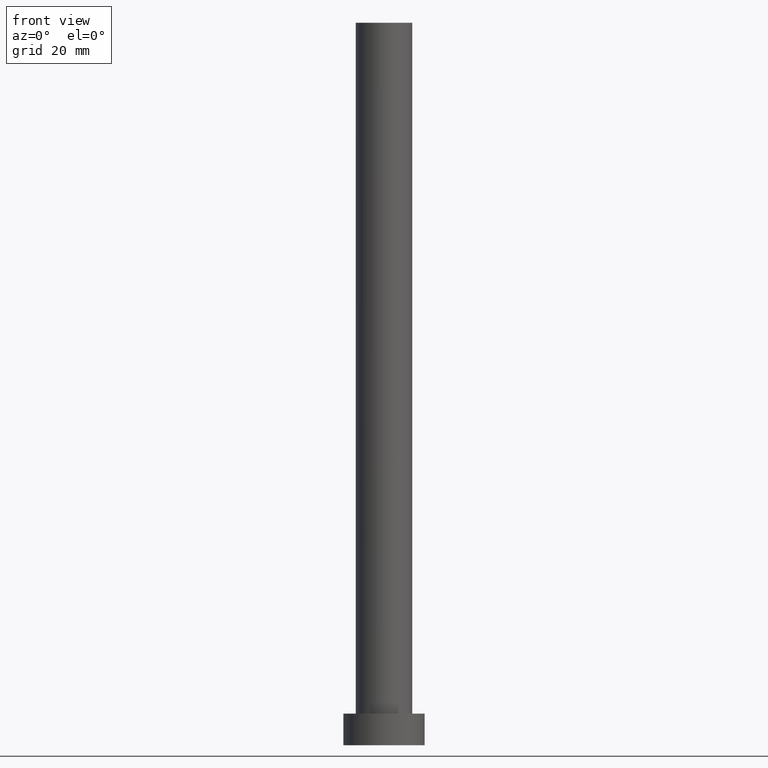
[diagram: clean part render]
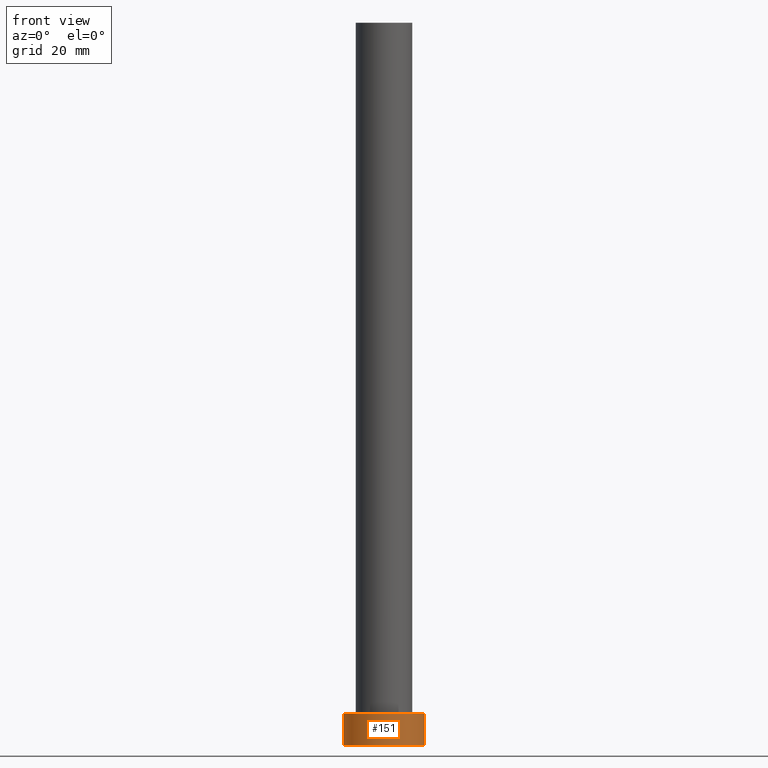
[diagram: same view with one face highlighted and labeled with its STEP entity id]
A machine part, front view. The second image highlights one B-rep face of the part: STEP entity #151.
In plain terms, the highlighted cylindrical surface (partial cylindrical patch) has radius 9 mm, axis along (-0, -0, -1).
Its self-contained STEP definition (entity closure, byte-faithful):
#4 = DIRECTION ( 'NONE',  ( -0.000000000000000000, -0.000000000000000000, -1.000000000000000000 ) ) ;
#8 = EDGE_CURVE ( 'NONE', #63, #89, #39, .T. ) ;
#11 = CARTESIAN_POINT ( 'NONE',  ( 0.000000000000000000, 0.000000000000000000, 7.000000000000000000 ) ) ;
#13 = CYLINDRICAL_SURFACE ( 'NONE', #43, 9.000000000000000000 ) ;
#14 = ORIENTED_EDGE ( 'NONE', *, *, #164, .T. ) ;
#25 = DIRECTION ( 'NONE',  ( -0.000000000000000000, -0.000000000000000000, -1.000000000000000000 ) ) ;
#34 = FACE_OUTER_BOUND ( 'NONE', #69, .T. ) ;
#36 = AXIS2_PLACEMENT_3D ( 'NONE', #11, #46, #104 ) ;
#39 = LINE ( 'NONE', #169, #45 ) ;
#43 = AXIS2_PLACEMENT_3D ( 'NONE', #77, #25, #241 ) ;
#45 = VECTOR ( 'NONE', #4, 1000.000000000000000 ) ;
#46 = DIRECTION ( 'NONE',  ( 0.000000000000000000, 0.000000000000000000, 1.000000000000000000 ) ) ;
#58 = LINE ( 'NONE', #116, #172 ) ;
#60 = ORIENTED_EDGE ( 'NONE', *, *, #144, .T. ) ;
#63 = VERTEX_POINT ( 'NONE', #228 ) ;
#69 = EDGE_LOOP ( 'NONE', ( #249, #194, #14, #60 ) ) ;
#72 = CIRCLE ( 'NONE', #140, 9.000000000000000000 ) ;
#75 = CARTESIAN_POINT ( 'NONE',  ( -9.000000000000000000, 0.000000000000000000, 0.000000000000000000 ) ) ;
#77 = CARTESIAN_POINT ( 'NONE',  ( 0.000000000000000000, 0.000000000000000000, 7.000000000000000000 ) ) ;
#89 = VERTEX_POINT ( 'NONE', #155 ) ;
#94 = VERTEX_POINT ( 'NONE', #161 ) ;
#104 = DIRECTION ( 'NONE',  ( 1.000000000000000000, 0.000000000000000000, 0.000000000000000000 ) ) ;
#116 = CARTESIAN_POINT ( 'NONE',  ( -9.000000000000000000, 0.000000000000000000, 7.000000000000000000 ) ) ;
#119 = EDGE_CURVE ( 'NONE', #94, #63, #198, .T. ) ;
#131 = DIRECTION ( 'NONE',  ( -0.000000000000000000, -0.000000000000000000, -1.000000000000000000 ) ) ;
#140 = AXIS2_PLACEMENT_3D ( 'NONE', #210, #157, #179 ) ;
#144 = EDGE_CURVE ( 'NONE', #185, #89, #72, .T. ) ;
#151 = ADVANCED_FACE ( 'NONE', ( #34 ), #13, .T. ) ;
#155 = CARTESIAN_POINT ( 'NONE',  ( 9.000000000000000000, 1.102182119232617714E-15, 0.000000000000000000 ) ) ;
#157 = DIRECTION ( 'NONE',  ( 0.000000000000000000, 0.000000000000000000, 1.000000000000000000 ) ) ;
#161 = CARTESIAN_POINT ( 'NONE',  ( -9.000000000000000000, 0.000000000000000000, 7.000000000000000000 ) ) ;
#164 = EDGE_CURVE ( 'NONE', #94, #185, #58, .T. ) ;
#169 = CARTESIAN_POINT ( 'NONE',  ( 9.000000000000000000, 1.102182119232617714E-15, 7.000000000000000000 ) ) ;
#172 = VECTOR ( 'NONE', #131, 1000.000000000000000 ) ;
#179 = DIRECTION ( 'NONE',  ( 1.000000000000000000, 0.000000000000000000, 0.000000000000000000 ) ) ;
#185 = VERTEX_POINT ( 'NONE', #75 ) ;
#194 = ORIENTED_EDGE ( 'NONE', *, *, #119, .F. ) ;
#198 = CIRCLE ( 'NONE', #36, 9.000000000000000000 ) ;
#210 = CARTESIAN_POINT ( 'NONE',  ( 0.000000000000000000, 0.000000000000000000, 0.000000000000000000 ) ) ;
#228 = CARTESIAN_POINT ( 'NONE',  ( 9.000000000000000000, 1.102182119232617714E-15, 7.000000000000000000 ) ) ;
#241 = DIRECTION ( 'NONE',  ( -1.000000000000000000, 0.000000000000000000, 0.000000000000000000 ) ) ;
#249 = ORIENTED_EDGE ( 'NONE', *, *, #8, .F. ) ;